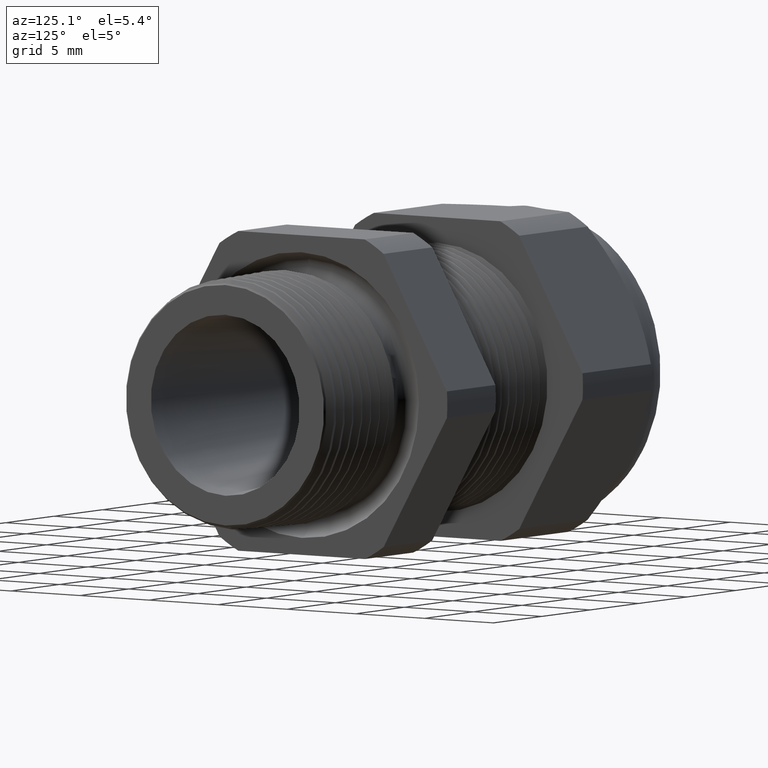
[diagram: clean part render]
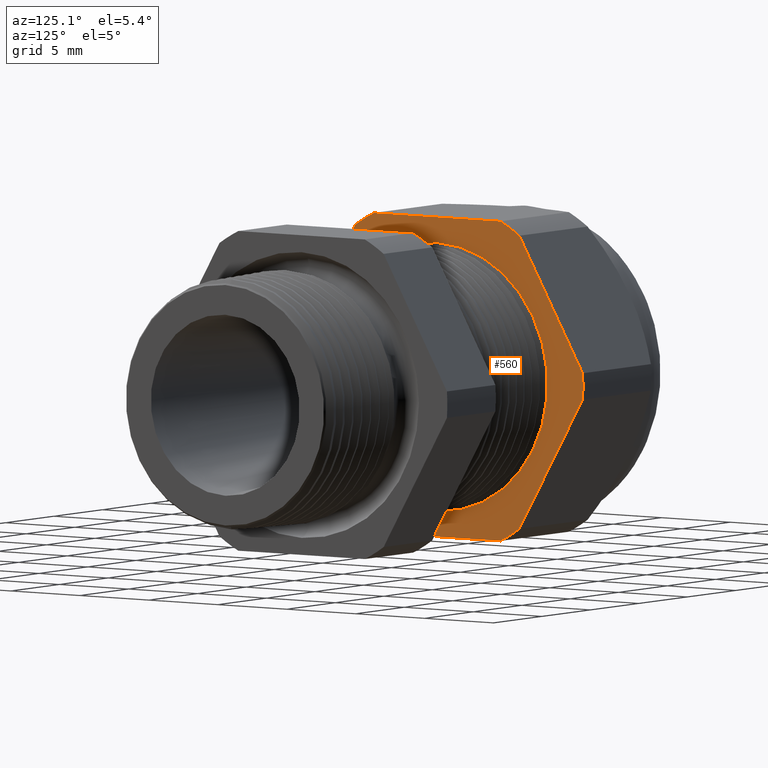
[diagram: same view with one face highlighted and labeled with its STEP entity id]
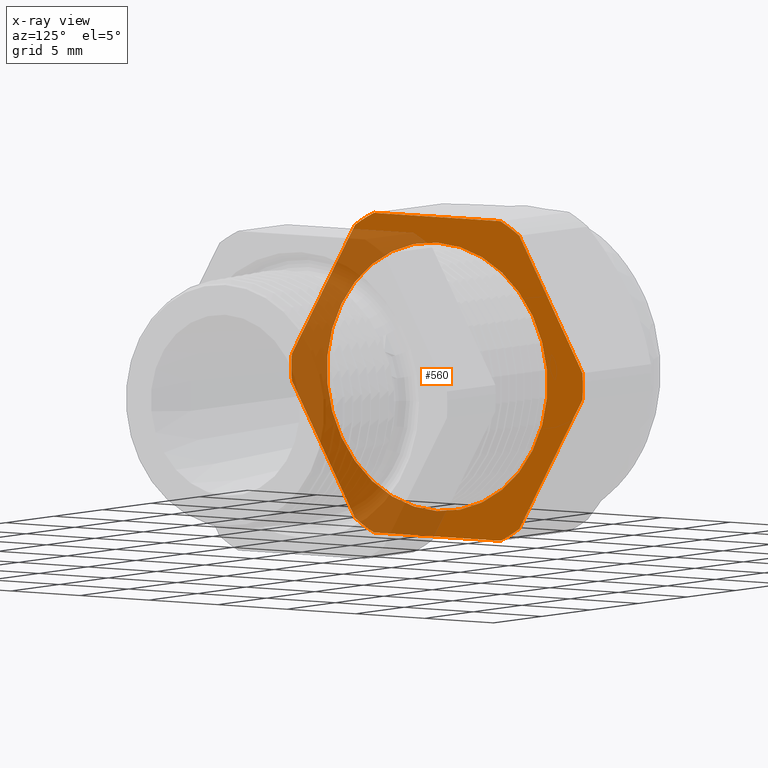
[diagram: x-ray of the same camera — body ghosted, the highlighted face saturated]
A machine part, auxiliary view. The second image highlights one B-rep face of the part: STEP entity #560.
The next image is the same camera in x-ray: the body ghosted, the highlighted face saturated — about 45% of this face is hidden behind the body in this view.
In plain terms, the highlighted planar face has unit normal (1, 0, 0).
Its self-contained STEP definition (entity closure, byte-faithful):
#151 = EDGE_CURVE ( 'NONE', #5004, #159, #1591, .T. ) ;
#159 = VERTEX_POINT ( 'NONE', #1573 ) ;
#181 = EDGE_CURVE ( 'NONE', #185, #183, #1655, .T. ) ;
#183 = VERTEX_POINT ( 'NONE', #1650 ) ;
#185 = VERTEX_POINT ( 'NONE', #1649 ) ;
#548 = ORIENTED_EDGE ( 'NONE', *, *, #4676, .T. ) ;
#549 = ORIENTED_EDGE ( 'NONE', *, *, #4641, .T. ) ;
#550 = ORIENTED_EDGE ( 'NONE', *, *, #4694, .T. ) ;
#551 = ORIENTED_EDGE ( 'NONE', *, *, #4977, .T. ) ;
#552 = ORIENTED_EDGE ( 'NONE', *, *, #4912, .T. ) ;
#553 = ORIENTED_EDGE ( 'NONE', *, *, #5006, .T. ) ;
#554 = ORIENTED_EDGE ( 'NONE', *, *, #151, .T. ) ;
#560 = ADVANCED_FACE ( 'NONE', ( #2387, #2386 ), #2385, .T. ) ;
#561 = EDGE_LOOP ( 'NONE', ( #562, #564 ) ) ;
#562 = ORIENTED_EDGE ( 'NONE', *, *, #563, .F. ) ;
#563 = EDGE_CURVE ( 'NONE', #183, #185, #2380, .T. ) ;
#564 = ORIENTED_EDGE ( 'NONE', *, *, #181, .F. ) ;
#565 = EDGE_LOOP ( 'NONE', ( #566, #567, #626, #627, #628, #548, #549, #550, #551, #552, #553, #554 ) ) ;
#566 = ORIENTED_EDGE ( 'NONE', *, *, #4606, .T. ) ;
#567 = ORIENTED_EDGE ( 'NONE', *, *, #4749, .T. ) ;
#626 = ORIENTED_EDGE ( 'NONE', *, *, #4740, .T. ) ;
#627 = ORIENTED_EDGE ( 'NONE', *, *, #4760, .T. ) ;
#628 = ORIENTED_EDGE ( 'NONE', *, *, #4690, .T. ) ;
#1573 = CARTESIAN_POINT ( 'NONE',  ( -0.8608661417322833700, 0.2344281053908202900, -0.3439586107409879900 ) ) ;
#1583 = DIRECTION ( 'NONE',  ( 0.0000000000000000000, 0.0000000000000000000, -1.000000000000000000 ) ) ;
#1584 = DIRECTION ( 'NONE',  ( 1.000000000000000000, 0.0000000000000000000, 0.0000000000000000000 ) ) ;
#1585 = CARTESIAN_POINT ( 'NONE',  ( -0.8608661417322833700, 0.0000000000000000000, 0.0000000000000000000 ) ) ;
#1586 = AXIS2_PLACEMENT_3D ( 'NONE', #1585, #1584, #1583 ) ;
#1591 = CIRCLE ( 'NONE', #1586, 0.4162500000000000100 ) ;
#1649 = CARTESIAN_POINT ( 'NONE',  ( -0.8608661417322833700, 3.857637417314162700E-017, -0.3150000000000000000 ) ) ;
#1650 = CARTESIAN_POINT ( 'NONE',  ( -0.8608661417322833700, 0.0000000000000000000, 0.3150000000000000000 ) ) ;
#1651 = DIRECTION ( 'NONE',  ( 0.0000000000000000000, 0.0000000000000000000, -1.000000000000000000 ) ) ;
#1652 = DIRECTION ( 'NONE',  ( 1.000000000000000000, 0.0000000000000000000, 0.0000000000000000000 ) ) ;
#1653 = CARTESIAN_POINT ( 'NONE',  ( -0.8608661417322833700, 0.0000000000000000000, 0.0000000000000000000 ) ) ;
#1654 = AXIS2_PLACEMENT_3D ( 'NONE', #1653, #1652, #1651 ) ;
#1655 = CIRCLE ( 'NONE', #1654, 0.3150000000000000000 ) ;
#2376 = DIRECTION ( 'NONE',  ( 0.0000000000000000000, 0.0000000000000000000, -1.000000000000000000 ) ) ;
#2377 = DIRECTION ( 'NONE',  ( 1.000000000000000000, 0.0000000000000000000, 0.0000000000000000000 ) ) ;
#2378 = CARTESIAN_POINT ( 'NONE',  ( -0.8608661417322833700, 0.0000000000000000000, 0.0000000000000000000 ) ) ;
#2379 = AXIS2_PLACEMENT_3D ( 'NONE', #2378, #2377, #2376 ) ;
#2380 = CIRCLE ( 'NONE', #2379, 0.3150000000000000000 ) ;
#2381 = DIRECTION ( 'NONE',  ( 0.0000000000000000000, 0.0000000000000000000, -1.000000000000000000 ) ) ;
#2382 = DIRECTION ( 'NONE',  ( 1.000000000000000000, 0.0000000000000000000, 0.0000000000000000000 ) ) ;
#2383 = CARTESIAN_POINT ( 'NONE',  ( -0.8608661417322833700, 0.3150000000000000000, 0.0000000000000000000 ) ) ;
#2384 = AXIS2_PLACEMENT_3D ( 'NONE', #2383, #2382, #2381 ) ;
#2385 = PLANE ( 'NONE',  #2384 ) ;
#2386 = FACE_OUTER_BOUND ( 'NONE', #565, .T. ) ;
#2387 = FACE_BOUND ( 'NONE', #561, .T. ) ;
#3531 = DIRECTION ( 'NONE',  ( 0.0000000000000000000, 0.5000000000000000000, 0.8660254037844386000 ) ) ;
#3532 = VECTOR ( 'NONE', #3531, 39.37007874015748900 ) ;
#3533 = CARTESIAN_POINT ( 'NONE',  ( -0.8608661417322833700, 0.4035095264191646000, -0.05110099890395097100 ) ) ;
#3534 = LINE ( 'NONE', #3533, #3532 ) ;
#3591 = DIRECTION ( 'NONE',  ( 0.0000000000000000000, -0.4999999999999998300, -0.8660254037844386000 ) ) ;
#3592 = VECTOR ( 'NONE', #3591, 39.37007874015748900 ) ;
#3593 = CARTESIAN_POINT ( 'NONE',  ( -0.8608661417322833700, -0.2460095264191647400, 0.3238990010960491300 ) ) ;
#3594 = LINE ( 'NONE', #3593, #3592 ) ;
#3595 = CARTESIAN_POINT ( 'NONE',  ( -0.8608661417322833700, -0.2344281053908202100, -0.3439586107409880500 ) ) ;
#3604 = CARTESIAN_POINT ( 'NONE',  ( -0.8608661417322833700, -0.4150909474475088000, 0.03104138925901241800 ) ) ;
#3617 = CARTESIAN_POINT ( 'NONE',  ( -0.8608661417322833700, -0.1806628420566886700, 0.3749999999999999400 ) ) ;
#3648 = CARTESIAN_POINT ( 'NONE',  ( -0.8608661417322833700, -0.4150909474475088000, -0.03104138925901237000 ) ) ;
#3672 = CARTESIAN_POINT ( 'NONE',  ( -0.8608661417322833700, -0.2344281053908205100, 0.3439586107409878200 ) ) ;
#3677 = DIRECTION ( 'NONE',  ( 0.0000000000000000000, 0.0000000000000000000, -1.000000000000000000 ) ) ;
#3678 = DIRECTION ( 'NONE',  ( 1.000000000000000000, 0.0000000000000000000, 0.0000000000000000000 ) ) ;
#3679 = CARTESIAN_POINT ( 'NONE',  ( -0.8608661417322833700, 0.0000000000000000000, 0.0000000000000000000 ) ) ;
#3680 = AXIS2_PLACEMENT_3D ( 'NONE', #3679, #3678, #3677 ) ;
#3681 = CIRCLE ( 'NONE', #3680, 0.4162500000000000100 ) ;
#3705 = DIRECTION ( 'NONE',  ( 0.0000000000000000000, 0.0000000000000000000, -1.000000000000000000 ) ) ;
#3706 = DIRECTION ( 'NONE',  ( 1.000000000000000000, 0.0000000000000000000, 0.0000000000000000000 ) ) ;
#3707 = CARTESIAN_POINT ( 'NONE',  ( -0.8608661417322833700, 0.0000000000000000000, 0.0000000000000000000 ) ) ;
#3708 = AXIS2_PLACEMENT_3D ( 'NONE', #3707, #3706, #3705 ) ;
#3709 = CIRCLE ( 'NONE', #3708, 0.4162500000000000100 ) ;
#3710 = DIRECTION ( 'NONE',  ( 0.0000000000000000000, -1.000000000000000000, 0.0000000000000000000 ) ) ;
#3711 = VECTOR ( 'NONE', #3710, 39.37007874015748100 ) ;
#3712 = CARTESIAN_POINT ( 'NONE',  ( -0.8608661417322833700, 0.3150000000000000000, 0.3749999999999999400 ) ) ;
#3713 = LINE ( 'NONE', #3712, #3711 ) ;
#3716 = CARTESIAN_POINT ( 'NONE',  ( -0.8608661417322833700, 0.1806628420566887000, 0.3749999999999999400 ) ) ;
#3763 = CARTESIAN_POINT ( 'NONE',  ( -0.8608661417322833700, 0.4150909474475088000, -0.03104138925901223100 ) ) ;
#3790 = CIRCLE ( 'NONE', #3846, 0.4162500000000000100 ) ;
#3795 = CARTESIAN_POINT ( 'NONE',  ( -0.8608661417322833700, 0.4150909474475088000, 0.03104138925901233200 ) ) ;
#3801 = CARTESIAN_POINT ( 'NONE',  ( -0.8608661417322833700, 0.2344281053908206000, 0.3439586107409877100 ) ) ;
#3802 = DIRECTION ( 'NONE',  ( 0.0000000000000000000, -0.4999999999999998300, 0.8660254037844386000 ) ) ;
#3803 = VECTOR ( 'NONE', #3802, 39.37007874015748900 ) ;
#3804 = CARTESIAN_POINT ( 'NONE',  ( -0.8608661417322833700, 0.4035095264191646000, 0.05110099890395098500 ) ) ;
#3808 = LINE ( 'NONE', #3804, #3803 ) ;
#3822 = CIRCLE ( 'NONE', #3823, 0.4162499999999999500 ) ;
#3823 = AXIS2_PLACEMENT_3D ( 'NONE', #3870, #3869, #3868 ) ;
#3843 = DIRECTION ( 'NONE',  ( 0.0000000000000000000, 0.0000000000000000000, -1.000000000000000000 ) ) ;
#3844 = DIRECTION ( 'NONE',  ( 1.000000000000000000, 0.0000000000000000000, 0.0000000000000000000 ) ) ;
#3845 = CARTESIAN_POINT ( 'NONE',  ( -0.8608661417322833700, 0.0000000000000000000, 0.0000000000000000000 ) ) ;
#3846 = AXIS2_PLACEMENT_3D ( 'NONE', #3845, #3844, #3843 ) ;
#3868 = DIRECTION ( 'NONE',  ( 0.0000000000000000000, 0.0000000000000000000, -1.000000000000000000 ) ) ;
#3869 = DIRECTION ( 'NONE',  ( 1.000000000000000000, 0.0000000000000000000, 0.0000000000000000000 ) ) ;
#3870 = CARTESIAN_POINT ( 'NONE',  ( -0.8608661417322833700, 0.0000000000000000000, 0.0000000000000000000 ) ) ;
#4150 = DIRECTION ( 'NONE',  ( 0.0000000000000000000, 0.0000000000000000000, -1.000000000000000000 ) ) ;
#4151 = DIRECTION ( 'NONE',  ( 1.000000000000000000, 0.0000000000000000000, 0.0000000000000000000 ) ) ;
#4152 = CARTESIAN_POINT ( 'NONE',  ( -0.8608661417322833700, 0.0000000000000000000, 0.0000000000000000000 ) ) ;
#4153 = AXIS2_PLACEMENT_3D ( 'NONE', #4152, #4151, #4150 ) ;
#4154 = CIRCLE ( 'NONE', #4153, 0.4162500000000000100 ) ;
#4181 = CARTESIAN_POINT ( 'NONE',  ( -0.8608661417322833700, -0.1806628420566883900, -0.3750000000000001100 ) ) ;
#4278 = DIRECTION ( 'NONE',  ( 0.0000000000000000000, 0.5000000000000002200, -0.8660254037844384900 ) ) ;
#4279 = VECTOR ( 'NONE', #4278, 39.37007874015748900 ) ;
#4280 = CARTESIAN_POINT ( 'NONE',  ( -0.8608661417322833700, -0.2460095264191644600, -0.3238990010960492400 ) ) ;
#4281 = LINE ( 'NONE', #4280, #4279 ) ;
#4287 = DIRECTION ( 'NONE',  ( 0.0000000000000000000, 1.000000000000000000, 0.0000000000000000000 ) ) ;
#4288 = VECTOR ( 'NONE', #4287, 39.37007874015748100 ) ;
#4289 = CARTESIAN_POINT ( 'NONE',  ( -0.8608661417322833700, 0.3150000000000000000, -0.3750000000000001100 ) ) ;
#4290 = LINE ( 'NONE', #4289, #4288 ) ;
#4291 = CARTESIAN_POINT ( 'NONE',  ( -0.8608661417322833700, 0.1806628420566884800, -0.3750000000000001100 ) ) ;
#4606 = EDGE_CURVE ( 'NONE', #159, #4729, #3534, .T. ) ;
#4636 = VERTEX_POINT ( 'NONE', #3604 ) ;
#4638 = VERTEX_POINT ( 'NONE', #3595 ) ;
#4641 = EDGE_CURVE ( 'NONE', #4679, #4636, #3594, .T. ) ;
#4655 = VERTEX_POINT ( 'NONE', #3617 ) ;
#4666 = VERTEX_POINT ( 'NONE', #3648 ) ;
#4676 = EDGE_CURVE ( 'NONE', #4655, #4679, #3681, .T. ) ;
#4679 = VERTEX_POINT ( 'NONE', #3672 ) ;
#4684 = VERTEX_POINT ( 'NONE', #3716 ) ;
#4690 = EDGE_CURVE ( 'NONE', #4684, #4655, #3713, .T. ) ;
#4694 = EDGE_CURVE ( 'NONE', #4636, #4666, #3709, .T. ) ;
#4729 = VERTEX_POINT ( 'NONE', #3763 ) ;
#4740 = EDGE_CURVE ( 'NONE', #4747, #4742, #3808, .T. ) ;
#4742 = VERTEX_POINT ( 'NONE', #3801 ) ;
#4747 = VERTEX_POINT ( 'NONE', #3795 ) ;
#4749 = EDGE_CURVE ( 'NONE', #4729, #4747, #3790, .T. ) ;
#4760 = EDGE_CURVE ( 'NONE', #4742, #4684, #3822, .T. ) ;
#4912 = EDGE_CURVE ( 'NONE', #4638, #4932, #4154, .T. ) ;
#4932 = VERTEX_POINT ( 'NONE', #4181 ) ;
#4977 = EDGE_CURVE ( 'NONE', #4666, #4638, #4281, .T. ) ;
#5004 = VERTEX_POINT ( 'NONE', #4291 ) ;
#5006 = EDGE_CURVE ( 'NONE', #4932, #5004, #4290, .T. ) ;